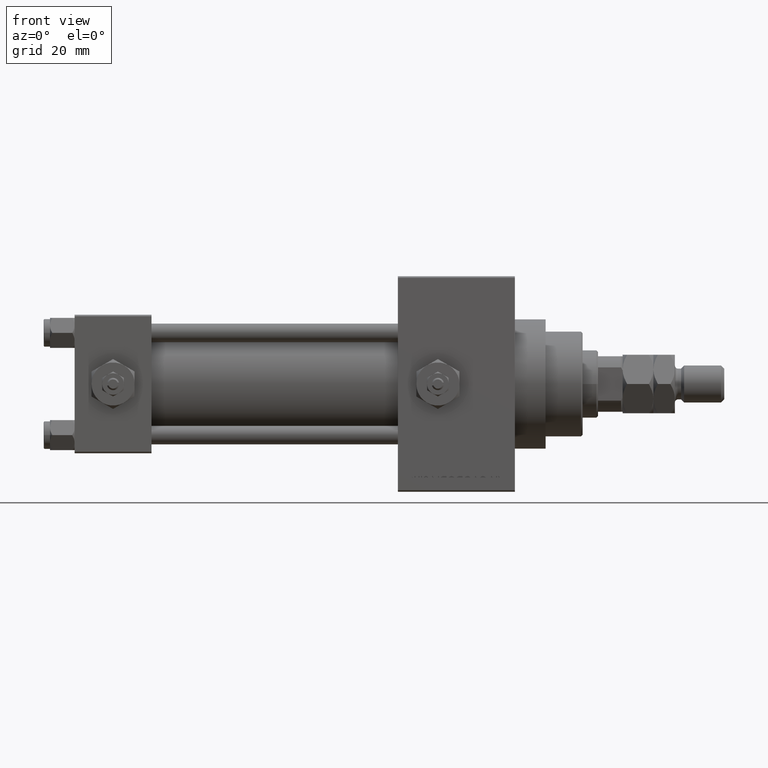
[diagram: clean part render]
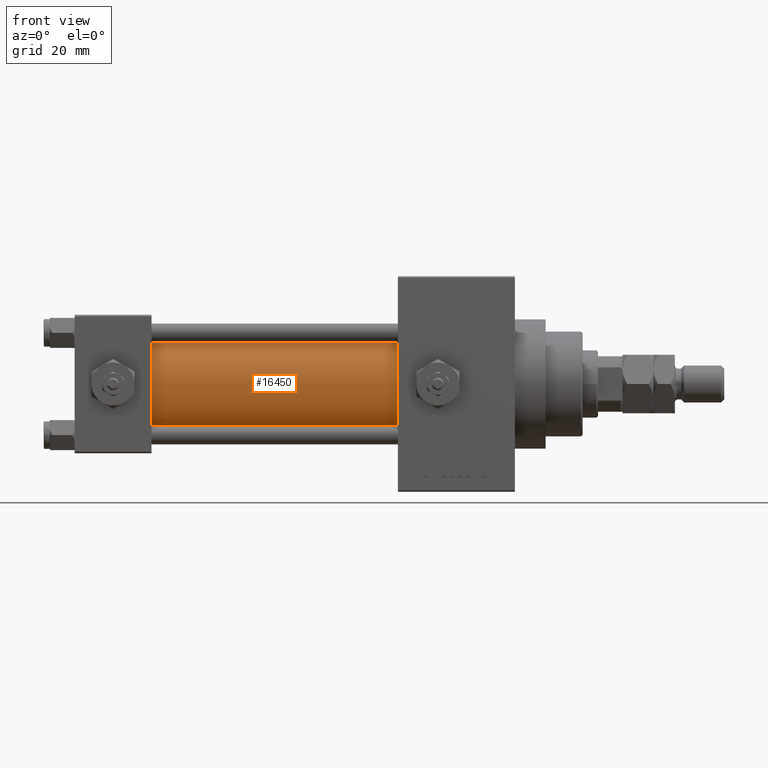
[diagram: same view with one face highlighted and labeled with its STEP entity id]
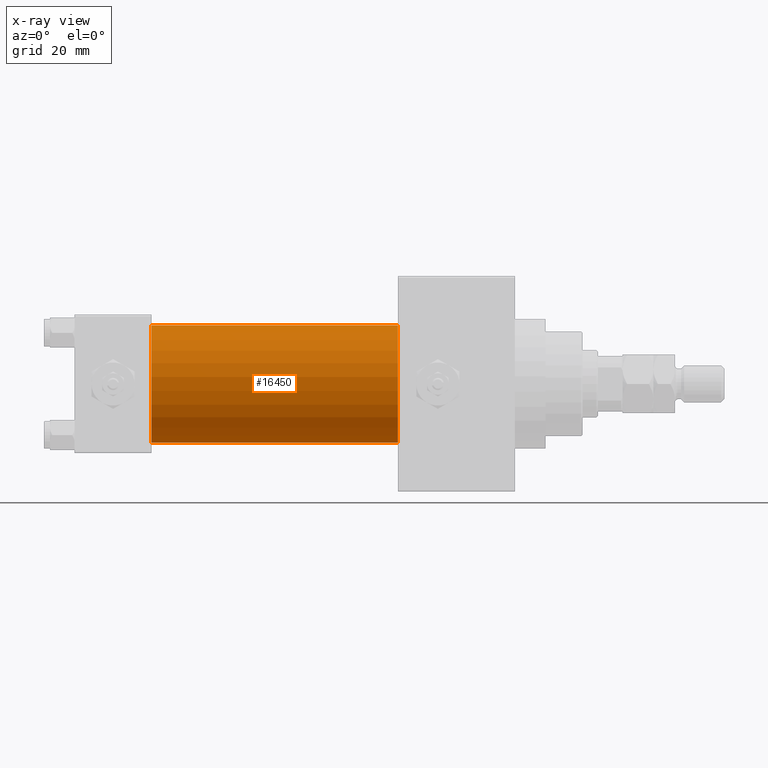
[diagram: x-ray of the same camera — body ghosted, the highlighted face saturated]
A machine part, front view. The second image highlights one B-rep face of the part: STEP entity #16450.
The next image is the same camera in x-ray: the body ghosted, the highlighted face saturated — about 0% of this face is hidden behind the body in this view.
In plain terms, the highlighted cylindrical surface (partial cylindrical patch) has radius 19 mm, axis along (-1, -0, -0).
Its self-contained STEP definition (entity closure, byte-faithful):
#47 = DIRECTION ( 'NONE',  ( 0.000000000000000000, 0.000000000000000000, -1.000000000000000000 ) ) ;
#3717 = VERTEX_POINT ( 'NONE', #44829 ) ;
#4176 = DIRECTION ( 'NONE',  ( -1.000000000000000000, -0.000000000000000000, -0.000000000000000000 ) ) ;
#7420 = CARTESIAN_POINT ( 'NONE',  ( 105.0000000000000142, -2.752562955852396712E-16, -19.00000000000000000 ) ) ;
#9287 = CARTESIAN_POINT ( 'NONE',  ( 24.99999999999999289, -2.752562955852396712E-16, -19.00000000000000000 ) ) ;
#10119 = AXIS2_PLACEMENT_3D ( 'NONE', #30803, #11845, #47 ) ;
#11845 = DIRECTION ( 'NONE',  ( 1.000000000000000000, 0.000000000000000000, 0.000000000000000000 ) ) ;
#12062 = CIRCLE ( 'NONE', #30852, 19.00000000000000000 ) ;
#12122 = CARTESIAN_POINT ( 'NONE',  ( 105.0000000000000142, -2.602085213965210642E-15, 19.00000000000000000 ) ) ;
#12686 = EDGE_CURVE ( 'NONE', #13137, #3717, #22355, .T. ) ;
#12812 = VERTEX_POINT ( 'NONE', #9287 ) ;
#13137 = VERTEX_POINT ( 'NONE', #30433 ) ;
#13148 = LINE ( 'NONE', #12122, #34055 ) ;
#14292 = CYLINDRICAL_SURFACE ( 'NONE', #42049, 19.00000000000000000 ) ;
#14515 = CARTESIAN_POINT ( 'NONE',  ( 24.99999999999999289, -2.602085213965210642E-15, 0.000000000000000000 ) ) ;
#14781 = DIRECTION ( 'NONE',  ( 0.000000000000000000, 0.000000000000000000, 1.000000000000000000 ) ) ;
#16450 = ADVANCED_FACE ( 'NONE', ( #33260 ), #14292, .T. ) ;
#17225 = ORIENTED_EDGE ( 'NONE', *, *, #12686, .F. ) ;
#21510 = EDGE_LOOP ( 'NONE', ( #27976, #17225, #30805, #30517 ) ) ;
#22057 = EDGE_CURVE ( 'NONE', #13137, #25508, #13148, .T. ) ;
#22355 = CIRCLE ( 'NONE', #10119, 19.00000000000000000 ) ;
#23976 = EDGE_CURVE ( 'NONE', #25508, #12812, #12062, .T. ) ;
#25508 = VERTEX_POINT ( 'NONE', #33066 ) ;
#25748 = EDGE_CURVE ( 'NONE', #3717, #12812, #42535, .T. ) ;
#27976 = ORIENTED_EDGE ( 'NONE', *, *, #25748, .F. ) ;
#29652 = CARTESIAN_POINT ( 'NONE',  ( 105.0000000000000142, -2.602085213965210642E-15, 0.000000000000000000 ) ) ;
#30160 = DIRECTION ( 'NONE',  ( 0.000000000000000000, 0.000000000000000000, 1.000000000000000000 ) ) ;
#30433 = CARTESIAN_POINT ( 'NONE',  ( 105.0000000000000142, -2.602085213965210642E-15, 19.00000000000000000 ) ) ;
#30517 = ORIENTED_EDGE ( 'NONE', *, *, #23976, .T. ) ;
#30803 = CARTESIAN_POINT ( 'NONE',  ( 105.0000000000000142, -2.602085213965210642E-15, 0.000000000000000000 ) ) ;
#30805 = ORIENTED_EDGE ( 'NONE', *, *, #22057, .T. ) ;
#30852 = AXIS2_PLACEMENT_3D ( 'NONE', #14515, #41950, #14781 ) ;
#33066 = CARTESIAN_POINT ( 'NONE',  ( 24.99999999999999289, -2.602085213965210642E-15, 19.00000000000000000 ) ) ;
#33260 = FACE_OUTER_BOUND ( 'NONE', #21510, .T. ) ;
#34055 = VECTOR ( 'NONE', #4176, 1000.000000000000000 ) ;
#38445 = DIRECTION ( 'NONE',  ( -1.000000000000000000, -0.000000000000000000, -0.000000000000000000 ) ) ;
#41219 = DIRECTION ( 'NONE',  ( -1.000000000000000000, -0.000000000000000000, -0.000000000000000000 ) ) ;
#41950 = DIRECTION ( 'NONE',  ( 1.000000000000000000, -0.000000000000000000, 0.000000000000000000 ) ) ;
#42049 = AXIS2_PLACEMENT_3D ( 'NONE', #29652, #41219, #30160 ) ;
#42535 = LINE ( 'NONE', #7420, #50454 ) ;
#44829 = CARTESIAN_POINT ( 'NONE',  ( 105.0000000000000142, -2.752562955852396712E-16, -19.00000000000000000 ) ) ;
#50454 = VECTOR ( 'NONE', #38445, 1000.000000000000000 ) ;